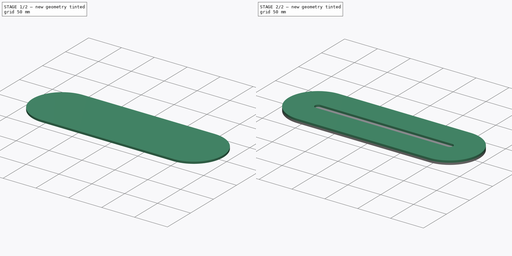
[diagram: build sequence overview — one tinted view per stage of 2, left to right]
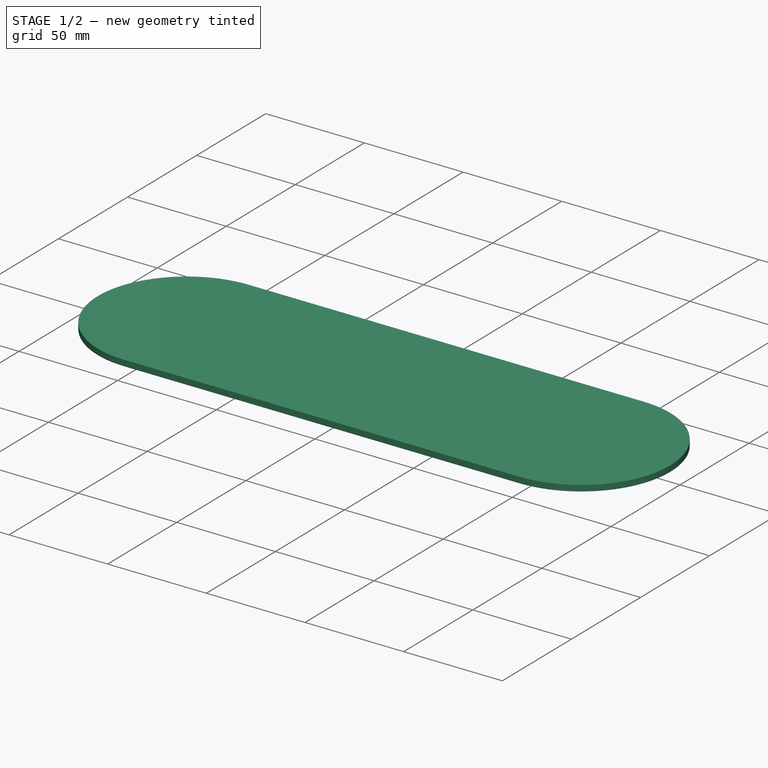
[diagram: stage 1 of 2 — iso view after this stage's code; geometry added in this stage tinted green]
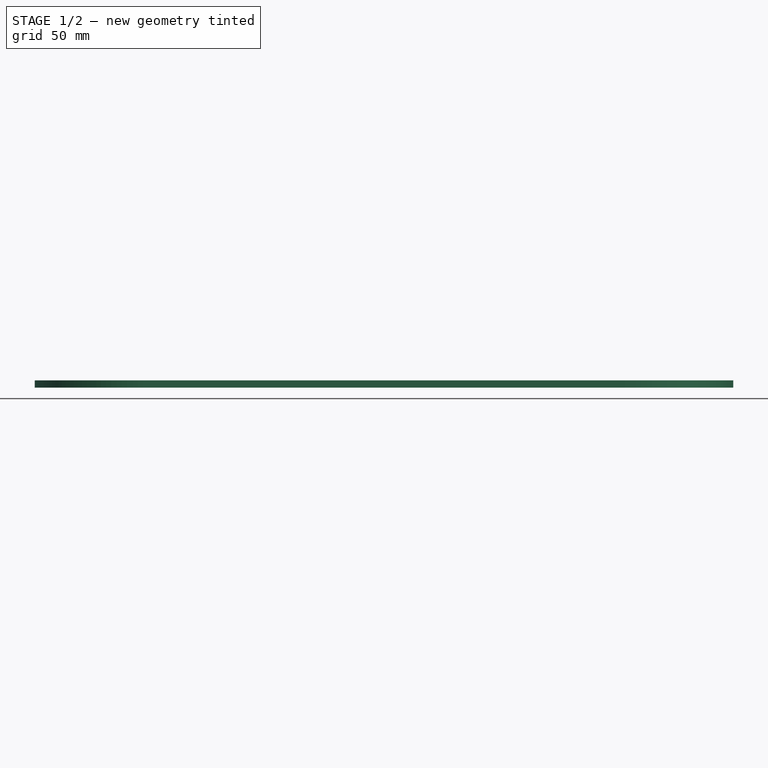
[diagram: stage 1 of 2 — front view after this stage's code; geometry added in this stage tinted green]
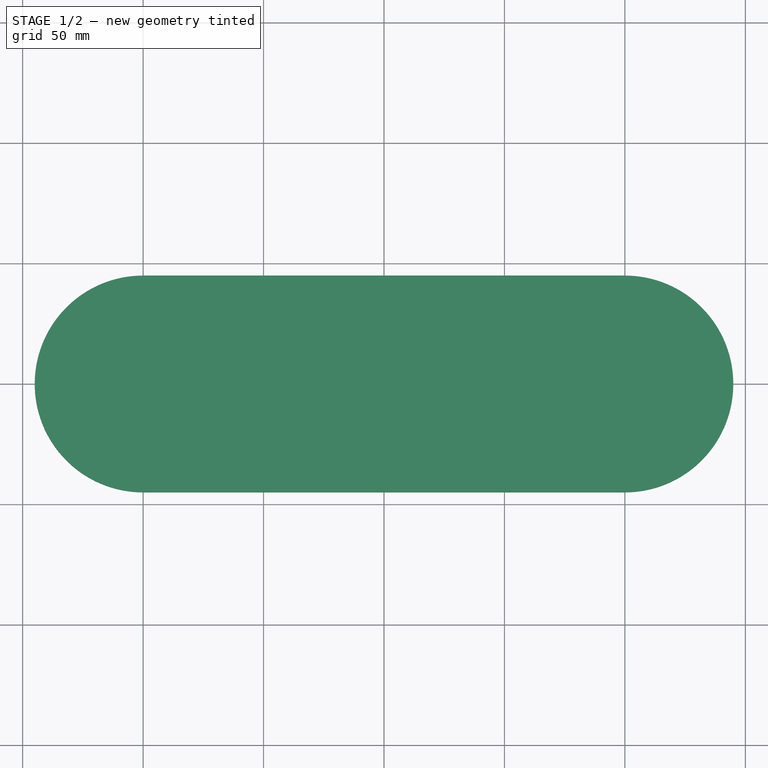
[diagram: stage 1 of 2 — top view after this stage's code; geometry added in this stage tinted green]
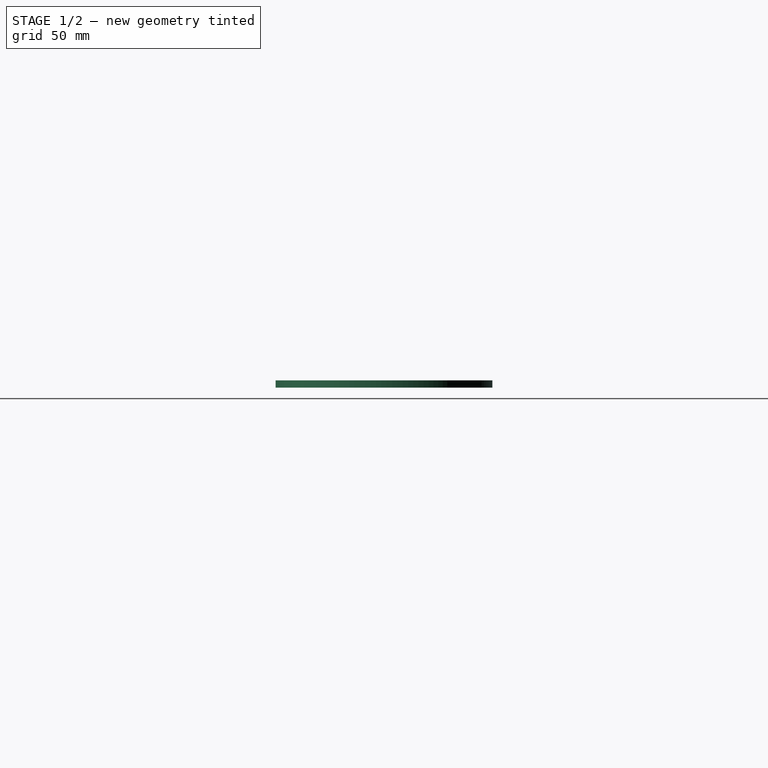
[diagram: stage 1 of 2 — right view after this stage's code; geometry added in this stage tinted green]
FCSTD DOCUMENT  (FreeCAD 0.17R13541 (Git))
Label: Acry-Base-12-10mm-LED-Slot-Crylic-Slot
License: All rights reserved
LicenseURL: http://en.wikipedia.org/wiki/All_rights_reserved
objects: Sketcher::SketchObject×3, PartDesign::Pad×2, PartDesign::Body×1, App::Part×1
note: 8 computed .brp shape members not serialized (recipe doc carries the construction recipe); baked Part::Feature solids carry a one-line shape summary decoded from their .brp

FEATURE [Sketcher::SketchObject] Sketch
  MapMode = 5
  Support = -> [XY_Plane001]
  sketch-geometry (5):
    g0: ArcOfCircle CenterX=-100 CenterY=0 CenterZ=0 NormalX=0 NormalY=0 NormalZ=1 AngleXU=0 Radius=45 StartAngle=1.5708 EndAngle=4.71239
    g1: ArcOfCircle CenterX=100 CenterY=0 CenterZ=0 NormalX=0 NormalY=0 NormalZ=1 AngleXU=0 Radius=45 StartAngle=4.71239 EndAngle=7.85398
    g2: LineSegment StartX=-100 StartY=-45 StartZ=0 EndX=100 EndY=-45 EndZ=0
    g3: LineSegment StartX=-100 StartY=45 StartZ=0 EndX=100 EndY=45 EndZ=0
    g4: GeomPoint X=0 Y=-45 Z=0
  constraints (12):
    c: Tangent(g0,g3) = 1.5708
    c: Tangent(g0,g2) = -1.5708
    c: Tangent(g2,g1) = -1.5708
    c: Tangent(g3,g1) = 1.5708
    c: Horizontal(g2)
    c: Equal(g0,g1)
    c: Distance(g1,g0) = 200
    c: Distance(g1,g1) = 45
    c: PointOnObject(g4,g2)
    c: Symmetric(g1,g0,g4)
    c: PointOnObject(g4,g-2)
    c: PointOnObject(g0,g-1)
FEATURE [PartDesign::Pad] Pad
  Length = 3
  Length2 = 100
  Profile = -> Sketch
  Type = 0
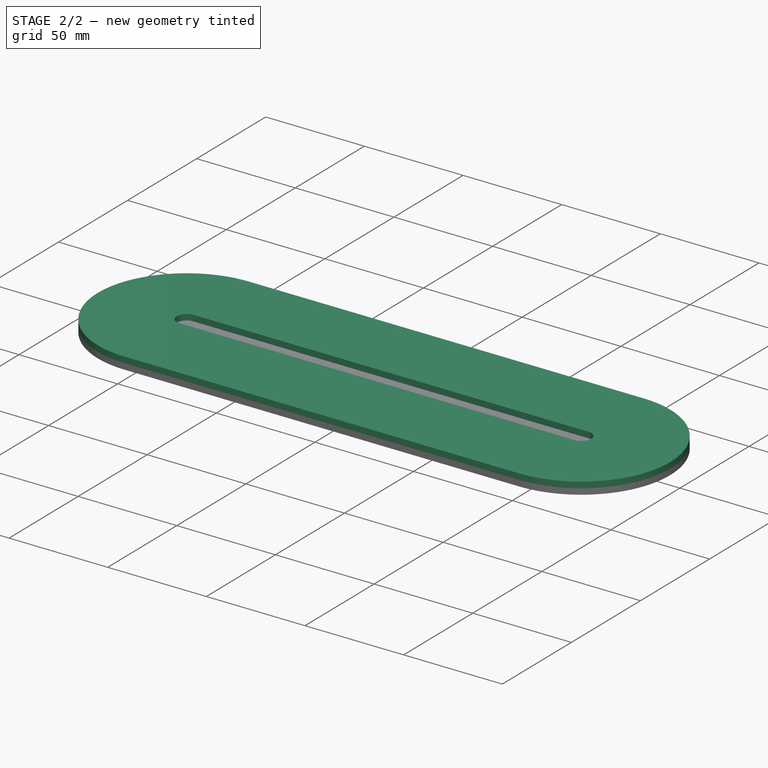
[diagram: stage 2 of 2 — iso view after this stage's code; geometry added in this stage tinted green]
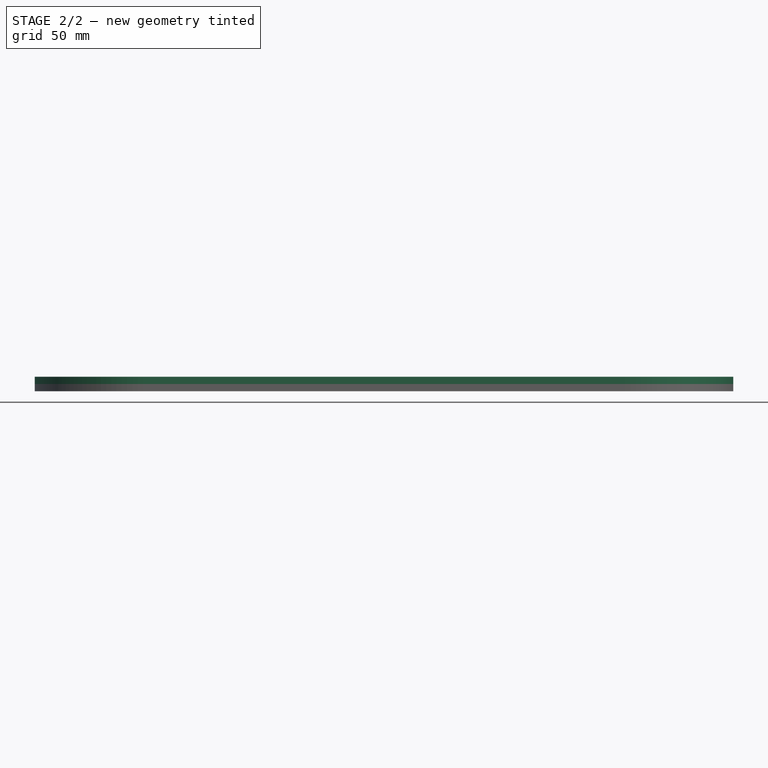
[diagram: stage 2 of 2 — front view after this stage's code; geometry added in this stage tinted green]
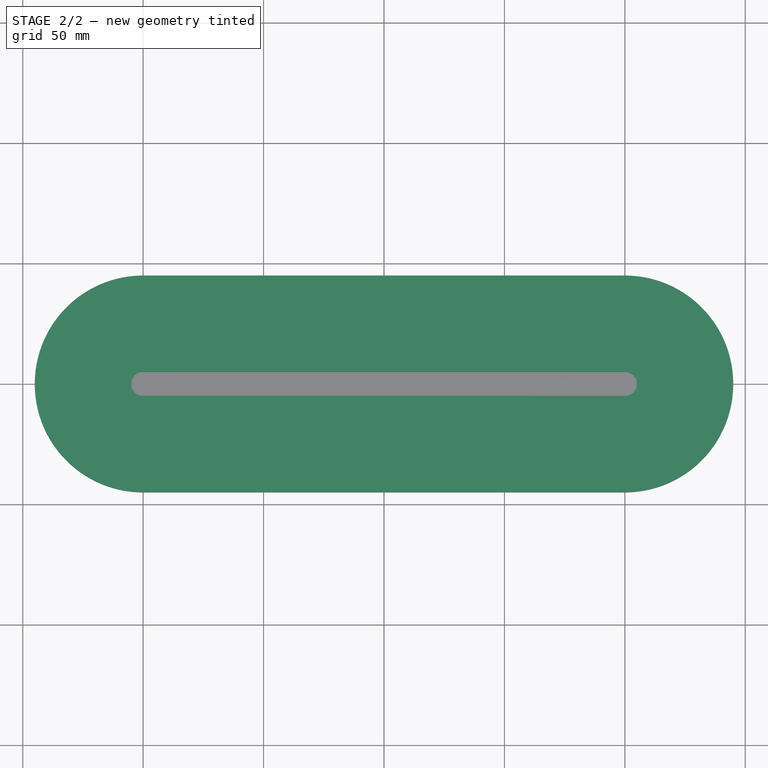
[diagram: stage 2 of 2 — top view after this stage's code; geometry added in this stage tinted green]
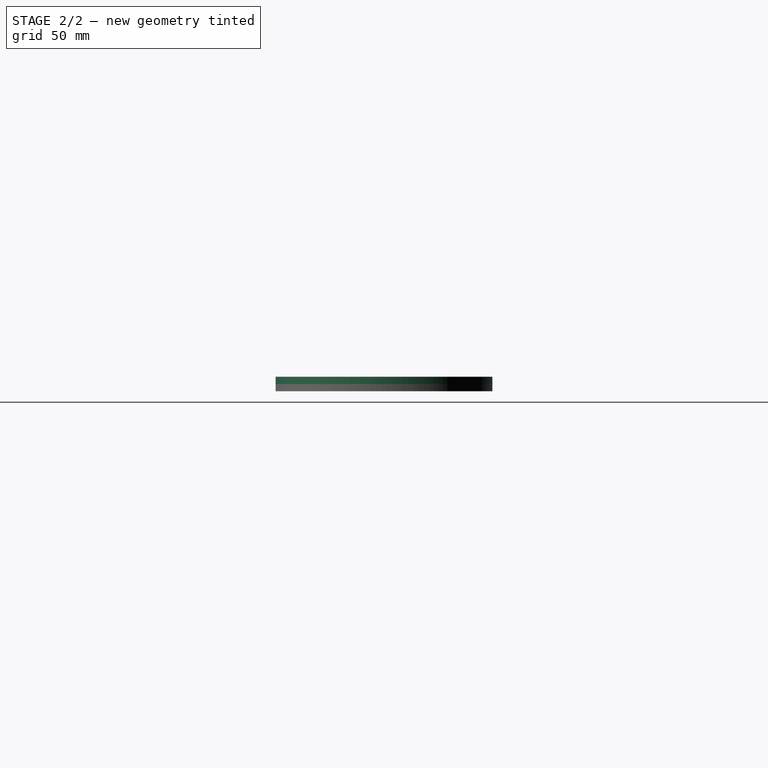
[diagram: stage 2 of 2 — right view after this stage's code; geometry added in this stage tinted green]
FEATURE [Sketcher::SketchObject] Sketch001
  ExternalGeometry = -> [Pad]
  MapMode = 5
  Placement = pos=(0,0,3) rot=(0,0,1;0rad)
  Support = -> [Pad]
  sketch-geometry (8):
    g0: ArcOfCircle CenterX=-100 CenterY=0 CenterZ=0 NormalX=0 NormalY=0 NormalZ=1 AngleXU=0 Radius=45 StartAngle=1.5708 EndAngle=4.71239
    g1: ArcOfCircle CenterX=100 CenterY=0 CenterZ=0 NormalX=0 NormalY=0 NormalZ=1 AngleXU=0 Radius=45 StartAngle=4.71239 EndAngle=7.85398
    g2: LineSegment StartX=-100 StartY=-45 StartZ=0 EndX=100 EndY=-45 EndZ=0
    g3: LineSegment StartX=-100 StartY=45 StartZ=0 EndX=100 EndY=45 EndZ=0
    g4: ArcOfCircle CenterX=-100 CenterY=0 CenterZ=0 NormalX=0 NormalY=0 NormalZ=1 AngleXU=0 Radius=5 StartAngle=1.5708 EndAngle=4.71239
    g5: ArcOfCircle CenterX=100 CenterY=0 CenterZ=0 NormalX=0 NormalY=0 NormalZ=1 AngleXU=0 Radius=5 StartAngle=4.71239 EndAngle=7.85398
    g6: LineSegment StartX=-100 StartY=-5 StartZ=0 EndX=100 EndY=-5 EndZ=0
    g7: LineSegment StartX=-100 StartY=5 StartZ=0 EndX=100 EndY=5 EndZ=0
  constraints (17):
    c: Tangent(g0,g3) = 1.5708
    c: Tangent(g0,g2) = -1.5708
    c: Tangent(g2,g1) = -1.5708
    c: Tangent(g3,g1) = 1.5708
    c: Horizontal(g2)
    c: Equal(g0,g1)
    c: Coincident(g0,g-4)
    c: Coincident(g1,g-3)
    c: Tangent(g4,g7) = 1.5708
    c: Tangent(g4,g6) = -1.5708
    c: Tangent(g6,g5) = -1.5708
    c: Tangent(g7,g5) = 1.5708
    c: Horizontal(g6)
    c: Equal(g4,g5)
    c: Coincident(g4,g0)
    c: Coincident(g5,g1)
    c: Distance(g5,g5) = 10
FEATURE [PartDesign::Pad] Pad001
  BaseFeature = -> Pad
  Length = 3
  Length2 = 100
  Profile = -> Sketch001
  Type = 0
FEATURE [Sketcher::SketchObject] Sketch002
  ExternalGeometry = -> [Pad001]
  MapMode = 5
  Placement = pos=(0,0,6) rot=(0,0,1;0rad)
  Support = -> [Pad001]
  sketch-geometry (8):
    g0: ArcOfCircle CenterX=-100 CenterY=0 CenterZ=0 NormalX=0 NormalY=0 NormalZ=1 AngleXU=0 Radius=45 StartAngle=1.5708 EndAngle=4.71239
    g1: ArcOfCircle CenterX=100 CenterY=0 CenterZ=0 NormalX=0 NormalY=0 NormalZ=1 AngleXU=0 Radius=45 StartAngle=4.71239 EndAngle=7.85398
    g2: LineSegment StartX=-100 StartY=-45 StartZ=0 EndX=100 EndY=-45 EndZ=0
    g3: LineSegment StartX=-100 StartY=45 StartZ=0 EndX=100 EndY=45 EndZ=0
    g4: LineSegment StartX=-104.625 StartY=1.9 StartZ=0 EndX=104.625 EndY=1.9 EndZ=0
    g5: LineSegment StartX=104.625 StartY=1.9 StartZ=0 EndX=104.625 EndY=-1.9 EndZ=0
    g6: LineSegment StartX=104.625 StartY=-1.9 StartZ=0 EndX=-104.625 EndY=-1.9 EndZ=0
    g7: LineSegment StartX=-104.625 StartY=-1.9 StartZ=0 EndX=-104.625 EndY=1.9 EndZ=0
  constraints (20):
    c: Tangent(g0,g3) = 1.5708
    c: Tangent(g0,g2) = -1.5708
    c: Tangent(g2,g1) = -1.5708
    c: Tangent(g3,g1) = 1.5708
    c: Horizontal(g2)
    c: Equal(g0,g1)
    c: Coincident(g0,g-3)
    c: Coincident(g1,g-4)
    c: Coincident(g4,g5)
    c: Coincident(g5,g6)
    c: Coincident(g6,g7)
    c: Coincident(g7,g4)
    c: Horizontal(g4)
    c: Horizontal(g6)
    c: Vertical(g5)
    c: Vertical(g7)
    c: PointOnObject(g4,g-5)
    c: PointOnObject(g5,g-6)
    c: PointOnObject(g6,g-5)
    c: Distance(g4,g6) = 3.8
FEATURE [PartDesign::Body] Body
  Group = -> [Sketch,Pad,Sketch001,Pad001,Sketch002]
  Origin = -> Origin001
  Tip = -> Pad001
FEATURE [App::Part] Part
  Group = -> [Body]
  License = CC BY 3.0
  LicenseURL = http://creativecommons.org/licenses/by/3.0/
  Origin = -> Origin
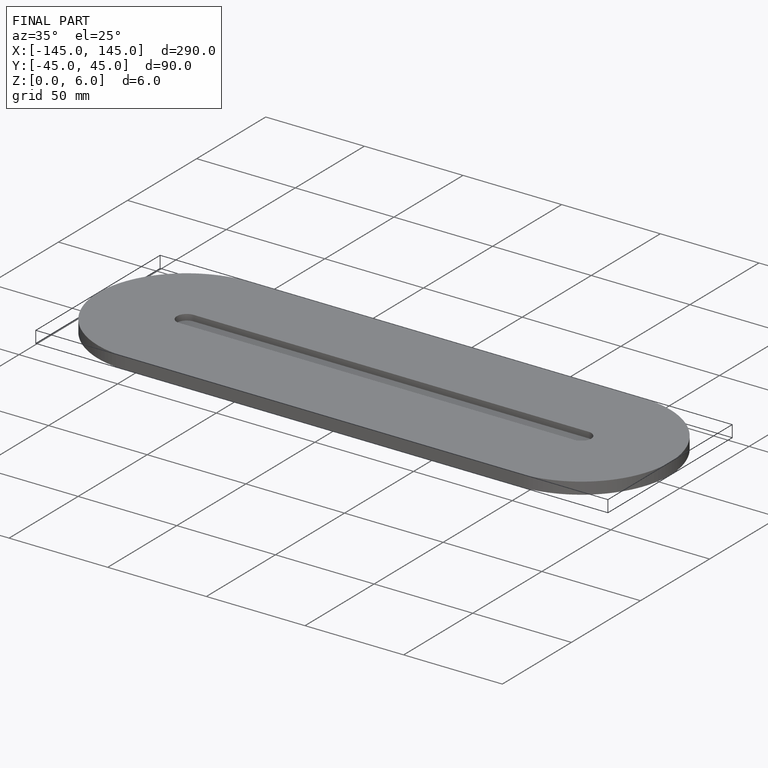
[diagram: finished part — iso view with bounding-box wireframe]
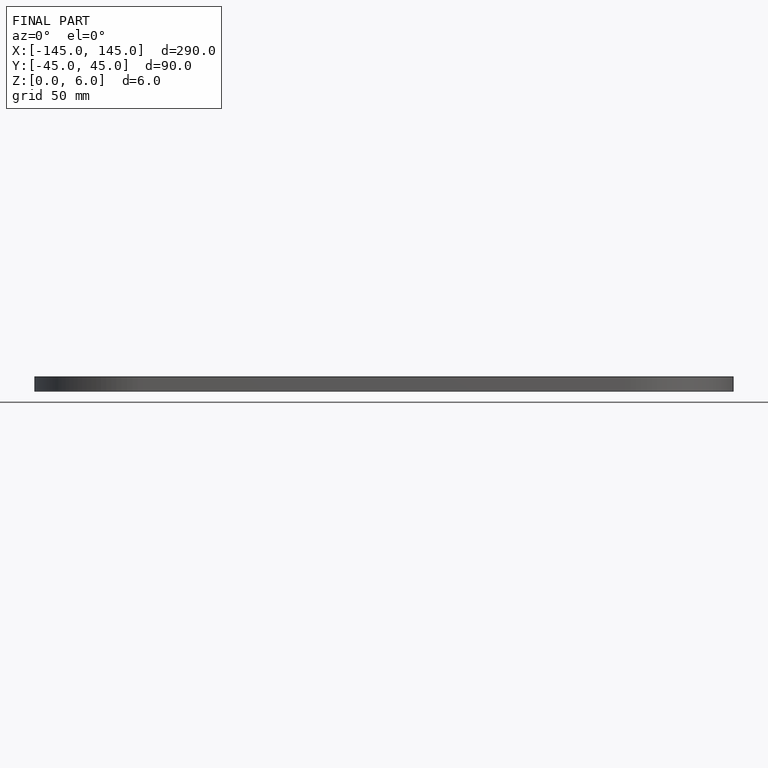
[diagram: finished part — front view with bounding-box wireframe]
